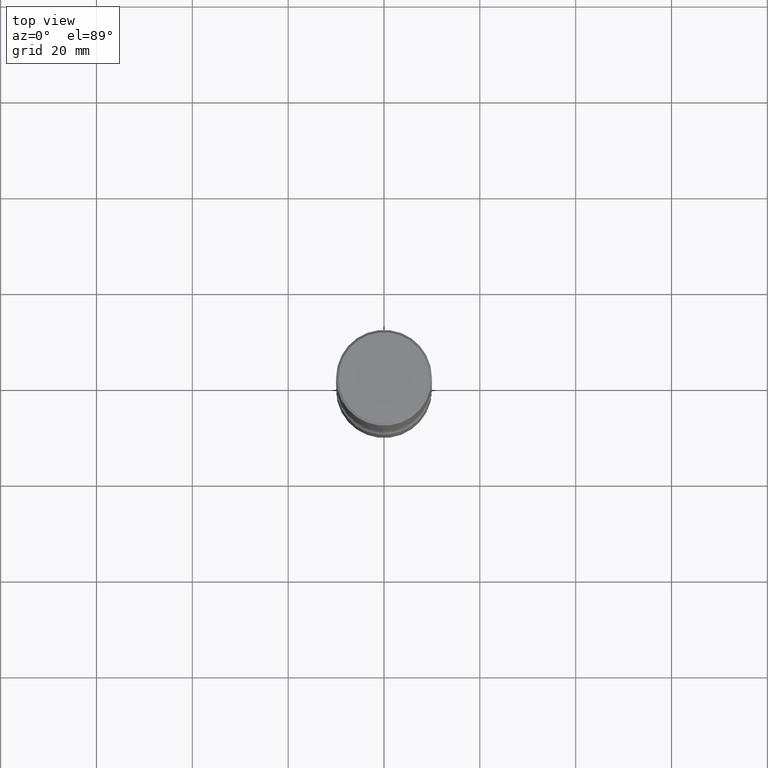
[diagram: clean part render]
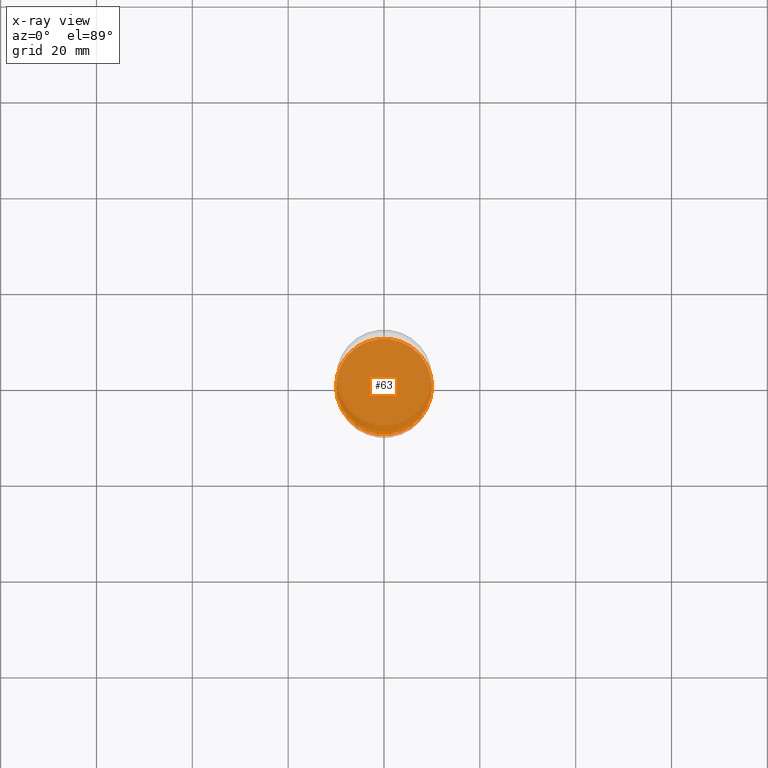
[diagram: x-ray — body ghosted, one internal face saturated and labeled with its STEP entity id]
A machine part, top view, then the same camera in x-ray: the body is ghosted and one INTERNAL B-rep face — a face not visible from any outside direction — is saturated and labeled: STEP entity #63.
In plain terms, the highlighted planar face has unit normal (0, -0, -1).
Its self-contained STEP definition (entity closure, byte-faithful):
#26 = FACE_OUTER_BOUND ( 'NONE', #540, .T. ) ;
#63 = ADVANCED_FACE ( 'NONE', ( #26 ), #281, .F. ) ;
#101 = ORIENTED_EDGE ( 'NONE', *, *, #208, .T. ) ;
#116 = CARTESIAN_POINT ( 'NONE',  ( 0.3937000000000002720, -1.745740669421571411E-14, -4.212599999999998346 ) ) ;
#132 = DIRECTION ( 'NONE',  ( -2.445468806185136597E-29, 3.491481338843145583E-15, 1.000000000000000000 ) ) ;
#133 = AXIS2_PLACEMENT_3D ( 'NONE', #315, #494, #324 ) ;
#159 = AXIS2_PLACEMENT_3D ( 'NONE', #365, #132, #179 ) ;
#179 = DIRECTION ( 'NONE',  ( 1.000000000000000000, -6.982962677686269077E-15, 0.000000000000000000 ) ) ;
#208 = EDGE_CURVE ( 'NONE', #359, #508, #532, .T. ) ;
#233 = AXIS2_PLACEMENT_3D ( 'NONE', #456, #462, #406 ) ;
#254 = ORIENTED_EDGE ( 'NONE', *, *, #380, .T. ) ;
#281 = PLANE ( 'NONE',  #233 ) ;
#315 = CARTESIAN_POINT ( 'NONE',  ( 1.030178189293550378E-28, -1.470821428801063089E-14, -4.212599999999998346 ) ) ;
#324 = DIRECTION ( 'NONE',  ( 1.000000000000000000, -6.982962677686269077E-15, 0.000000000000000000 ) ) ;
#359 = VERTEX_POINT ( 'NONE', #402 ) ;
#365 = CARTESIAN_POINT ( 'NONE',  ( 1.030178189293550378E-28, -1.470821428801063089E-14, -4.212599999999998346 ) ) ;
#380 = EDGE_CURVE ( 'NONE', #508, #359, #407, .T. ) ;
#402 = CARTESIAN_POINT ( 'NONE',  ( -0.3937000000000002720, -1.469439103471581201E-14, -4.212599999999998346 ) ) ;
#406 = DIRECTION ( 'NONE',  ( -1.000000000000000000, 6.982962677686265922E-15, -4.876176775795935793E-29 ) ) ;
#407 = CIRCLE ( 'NONE', #159, 0.3937000000000002720 ) ;
#456 = CARTESIAN_POINT ( 'NONE',  ( 1.030178189293550378E-28, -1.470821428801063089E-14, -4.212599999999998346 ) ) ;
#462 = DIRECTION ( 'NONE',  ( 2.438088387897960049E-29, -3.491481338843145188E-15, -1.000000000000000000 ) ) ;
#494 = DIRECTION ( 'NONE',  ( -2.445468806185136597E-29, 3.491481338843145583E-15, 1.000000000000000000 ) ) ;
#508 = VERTEX_POINT ( 'NONE', #116 ) ;
#532 = CIRCLE ( 'NONE', #133, 0.3937000000000002720 ) ;
#540 = EDGE_LOOP ( 'NONE', ( #254, #101 ) ) ;